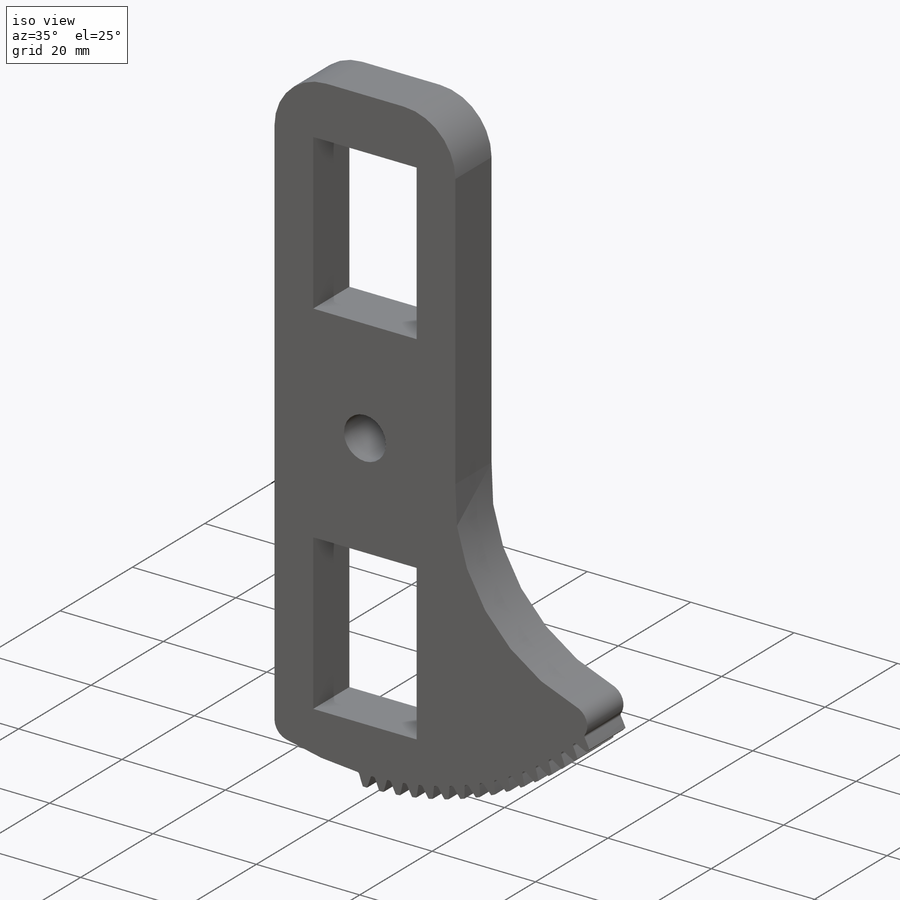
[diagram: iso view]
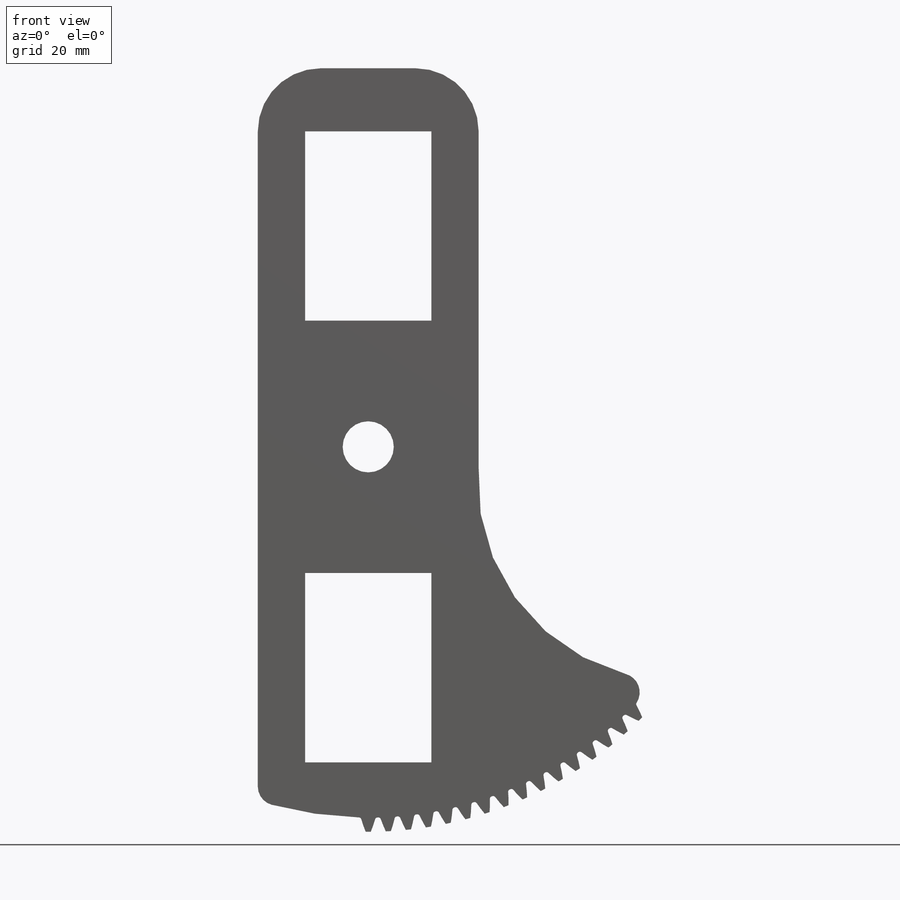
[diagram: front view]
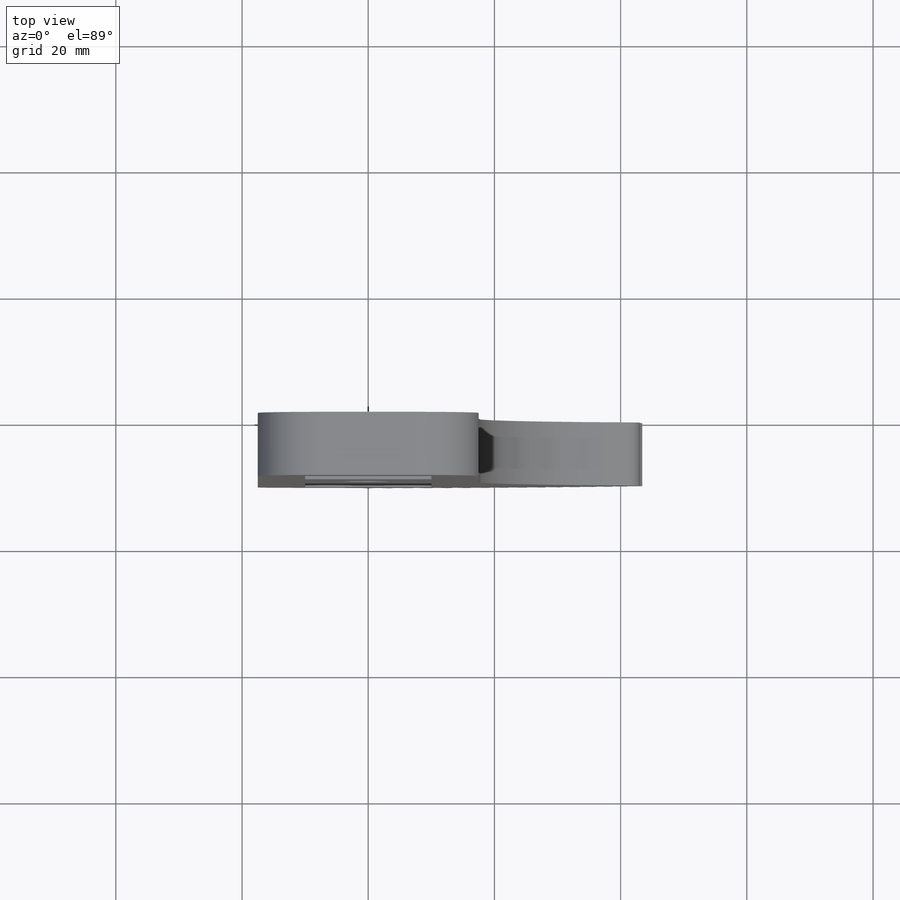
[diagram: top view]
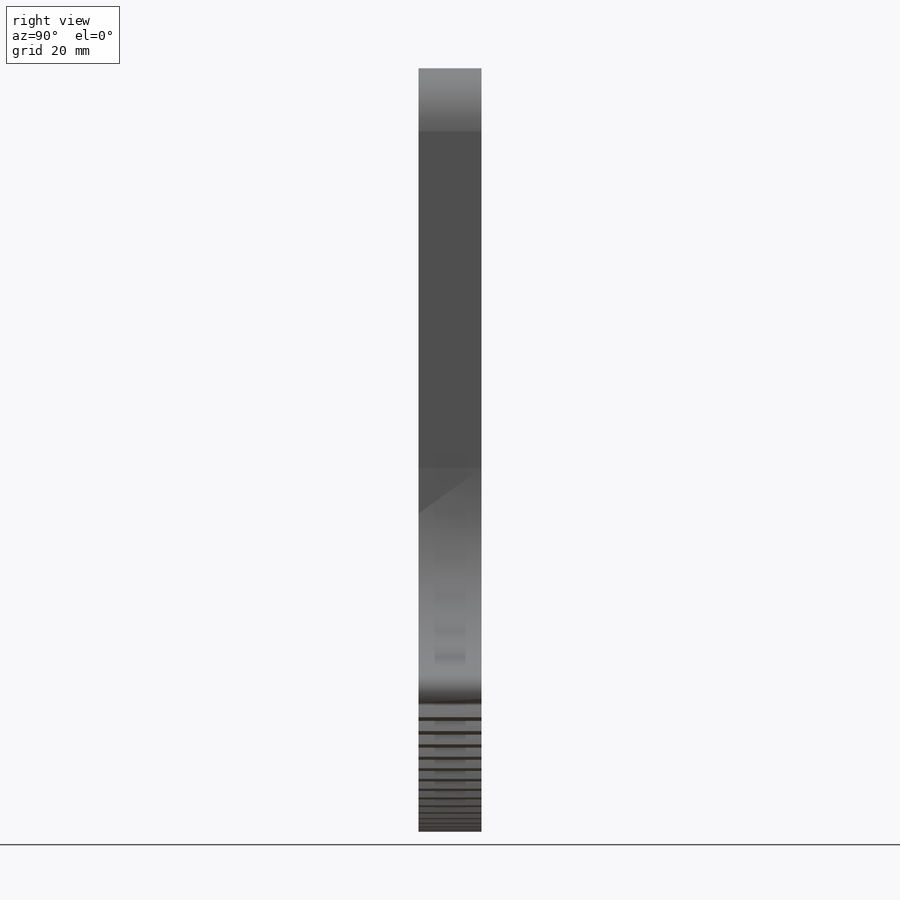
[diagram: right view]
SOLIDWORKS PART (.sldprt)
format: sldprt  version: not decoded by parser v0  size: 1,694,720 bytes
history: native  units: mm
features: sketch x8, cut_extrude x5, extrude x2, material x1, pattern_circular x1, fillet x1 + 1 further entry (+13 scaffold rows collapsed)
feature tree (32):
  scaffold x13  (default folders/planes/origin — collapsed)
  material  "Material <not specified>"
  "Design Table"
  sketch  "Pitch Diameter"  dims[D1=120.0mm]
  sketch  "Sketch1"  dims[c1.D1=14.0mm c1.D2=5.0mm c1.D3=14.0mm c1.D4=~22.241922mm c2.D1=~5.360874mm c2.D2=~9.467075mm c3.D1=0.0mm c3.D2=0.0mm c3.D3=~0.14707mm c3.D4=~0.284877mm c3.D5=~0.413696mm c3.D6=~0.533805mm c3.D7=~0.645484mm c3.D8=~0.749018mm c3.D9=~0.844695mm c3.D10=~0.932806mm c3.D11=~1.013646mm c3.D12=~1.087512mm c3.D13=~1.091185mm c3.D14=~1.094859mm c3.D15=~1.103864mm c3.D16=~1.115257mm c3.D17=~1.130203mm c3.D18=~1.150601mm c3.D19=~1.179539mm c3.D20=~1.221798mm c3.D21=~1.283656mm c3.D22=1.3697mm c3.D23=~1.474901mm c3.D24=0.0mm c3.D25=~61.943218mm c3.D26=~61.613791mm c3.D27=~61.292872mm c3.D28=~60.980657mm c3.D29=~60.677334mm c3.D30=~60.383087mm c3.D31=~60.098093mm c3.D32=~59.822521mm c3.D33=~59.556536mm c3.D34=~59.300296mm c3.D35=~59.053952mm c3.D36=~59.042218mm c3.D37=~59.030485mm c3.D38=~59.005528mm c3.D39=~58.978421mm c3.D40=~58.948327mm c3.D41=~58.914282mm c3.D42=~58.875439mm c3.D43=~58.831895mm c3.D44=~58.78667mm c3.D45=~58.748595mm c3.D46=~58.731484mm]
  extrude  "Tooth"  Depth=10mm
  pattern_circular  "Teeth"  Count=120 Angle=18deg
  sketch  "Sketch6"  dims[D1=122.0mm]
  cut_extrude  "Addendum"  [1 undecoded]
  sketch  "Sketch7"
  cut_extrude  "Cut-Extrude1"  Depth=10mm
  sketch  "Sketch8"  dims[c1.D4=10.0mm c1.D1=~85.729655mm c2.D1=55.0deg c2.D2=10.0mm c2.D3=10.0mm]
  cut_extrude  "Cut-Extrude2"  Depth=10mm
  sketch  "Sketch9"  dims[c1.D6=8.0mm c1.D7=10.0mm c1.D13=10.0mm c1.D1=120.0mm c1.D2=30.0mm c1.D3=10.0mm c1.D4=20.0mm c1.D5=35.0mm c1.D8=120.0mm c1.D9=60.0mm c1.D10=17.5mm c2.D8=30.0mm c2.D11=10.0mm c2.D12=10.0mm c3.D8=30.0mm c3.D11=7.5mm]
  extrude  "Boss-Extrude1"  Depth=10mm
  sketch  "Sketch10"
  cut_extrude  "Cut-Extrude3"  Depth=10mm
  sketch  "Sketch11"
  cut_extrude  "Cut-Extrude4"  Depth=10mm
  fillet  "Fillet1"  Radius=3mm
decode coverage: 13 of 17 modeling features carry decoded parameters; 1 rows unclassified (native names shown)
note: ~ marks probable driven/reference dimensions
note: 1 parameter value undecoded
note: suppression state not decoded; provenance and decode notes live in map.json
